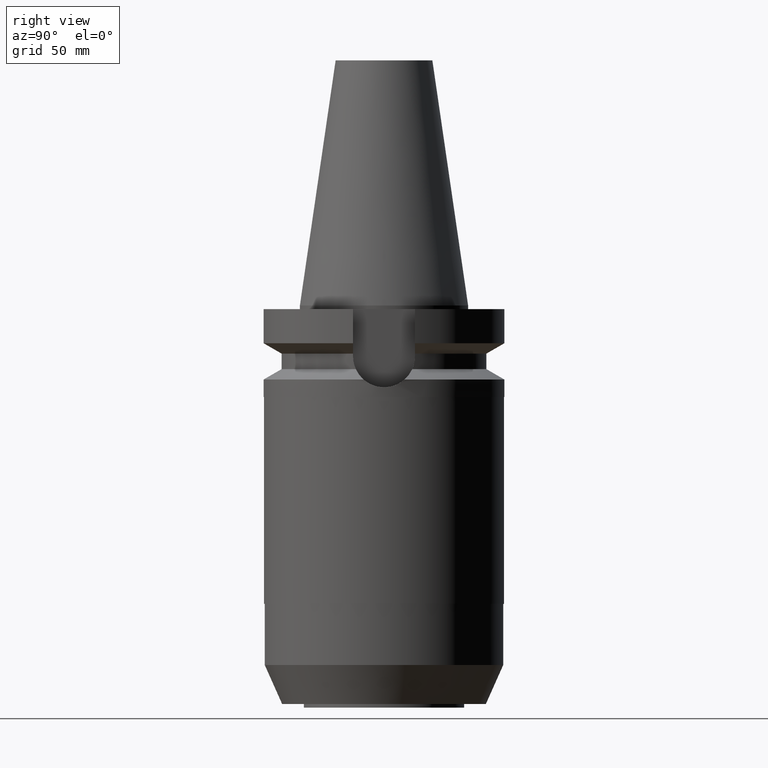
[diagram: clean part render]
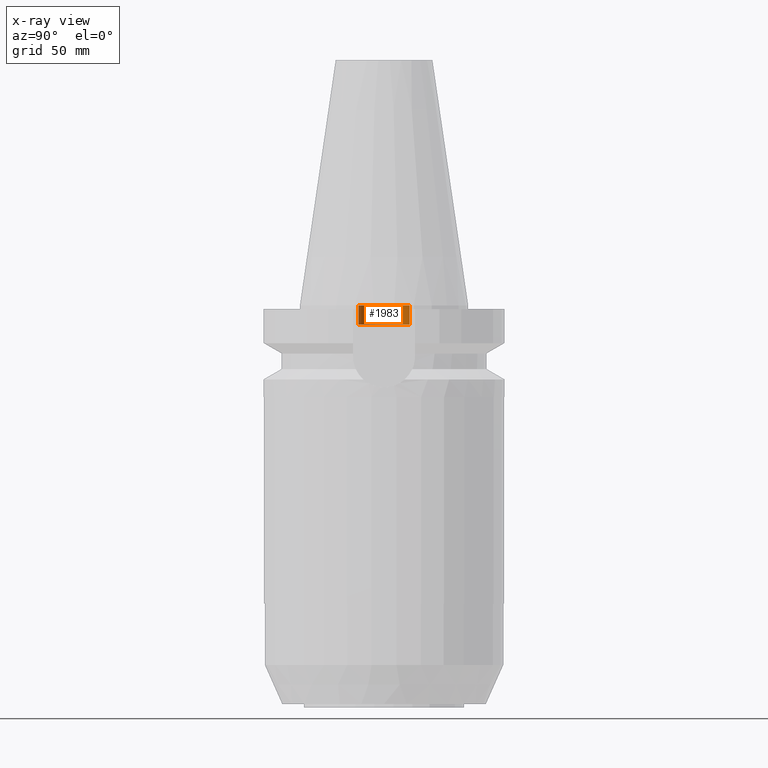
[diagram: x-ray — body ghosted, one internal face saturated and labeled with its STEP entity id]
A machine part, right view, then the same camera in x-ray: the body is ghosted and one INTERNAL B-rep face — a face not visible from any outside direction — is saturated and labeled: STEP entity #1983.
In plain terms, the highlighted cylindrical surface (edge-blend (fillet) strip) has radius 10.6 mm, axis along (0, 0, 1).
Its self-contained STEP definition (entity closure, byte-faithful):
#954=CARTESIAN_POINT('',(0.E0,0.E0,-8.E0));
#955=DIRECTION('',(0.E0,0.E0,-1.E0));
#956=DIRECTION('',(0.E0,-1.E0,0.E0));
#957=AXIS2_PLACEMENT_3D('',#954,#955,#956);
#970=DIRECTION('',(0.E0,0.E0,1.E0));
#971=VECTOR('',#970,8.E0);
#972=CARTESIAN_POINT('',(0.E0,-1.06E1,-8.E0));
#973=LINE('',#972,#971);
#977=CARTESIAN_POINT('',(0.E0,0.E0,8.526512829121E-14));
#978=DIRECTION('',(0.E0,0.E0,-1.E0));
#979=DIRECTION('',(0.E0,-1.E0,0.E0));
#980=AXIS2_PLACEMENT_3D('',#977,#978,#979);
#985=DIRECTION('',(0.E0,0.E0,1.E0));
#986=VECTOR('',#985,8.E0);
#987=CARTESIAN_POINT('',(0.E0,1.06E1,-8.E0));
#988=LINE('',#987,#986);
#1201=CARTESIAN_POINT('',(0.E0,-1.06E1,-8.E0));
#1202=CARTESIAN_POINT('',(0.E0,1.06E1,-8.E0));
#1203=VERTEX_POINT('',#1201);
#1204=VERTEX_POINT('',#1202);
#1205=CARTESIAN_POINT('',(0.E0,1.06E1,8.526512829121E-14));
#1206=VERTEX_POINT('',#1205);
#1207=CARTESIAN_POINT('',(0.E0,-1.06E1,8.526512829121E-14));
#1208=VERTEX_POINT('',#1207);
#1969=CARTESIAN_POINT('',(0.E0,0.E0,-1.8044E2));
#1970=DIRECTION('',(0.E0,0.E0,1.E0));
#1971=DIRECTION('',(0.E0,1.E0,0.E0));
#1972=AXIS2_PLACEMENT_3D('',#1969,#1970,#1971);
#1973=CYLINDRICAL_SURFACE('',#1972,1.06E1);
#1975=ORIENTED_EDGE('',*,*,#1974,.F.);
#1976=ORIENTED_EDGE('',*,*,#1962,.F.);
#1978=ORIENTED_EDGE('',*,*,#1977,.T.);
#1980=ORIENTED_EDGE('',*,*,#1979,.T.);
#1981=EDGE_LOOP('',(#1975,#1976,#1978,#1980));
#1982=FACE_OUTER_BOUND('',#1981,.F.);
#958=CIRCLE('',#957,1.06E1);
#981=CIRCLE('',#980,1.06E1);
#1962=EDGE_CURVE('',#1203,#1204,#958,.T.);
#1974=EDGE_CURVE('',#1204,#1206,#988,.T.);
#1977=EDGE_CURVE('',#1203,#1208,#973,.T.);
#1979=EDGE_CURVE('',#1208,#1206,#981,.T.);
#1983=ADVANCED_FACE('',(#1982),#1973,.F.);